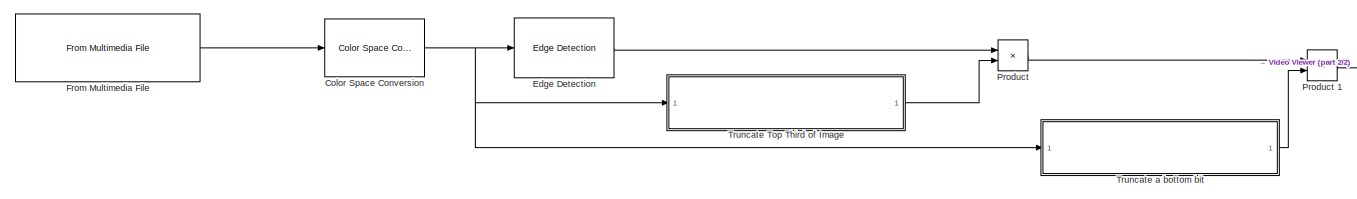
[diagram: root canvas - part 1/2, most of the canvas]
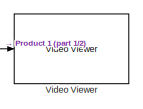
[diagram: root canvas - part 2/2, middle right region]
MODEL slx_daf7088e9cd9
KIND model
CONFIG AbsTol = auto
CONFIG FixedStep = auto
CONFIG MaxStep = auto
CONFIG MinStep = auto
CONFIG RelTol = 1e-3
CONFIG SampleTimeConstraint = Unconstrained
CONFIG Solver = ode45
CONFIG SolverMode = Auto
CONFIG SolverName = ode45
CONFIG StartTime = 0.0
CONFIG StopTime = 10.0
BLOCK [Reference] Color Space Conversion  REF=visionconversions/Color Space
 Conversion
  Ports = [1, 1]
  SourceBlock = visionconversions/Color Space\n Conversion
  SourceType = Color Space Conversion
  conversion = Obsolete
  conversionActive = R'G'B' to intensity
  imagePorts = One multidimensional signal
  rec = Rec. 601 (SDTV)
  sys = 1125/60/2:1
  wp_str = D65
BLOCK [Reference] Edge Detection  REF=visionanalysis/Edge Detection
  LockScale = off
  Ports = [1, 1]
  SourceBlock = visionanalysis/Edge Detection
  SourceType = Edge Detection
  accumFracLength = 8
  accumMode = Same as product output
  accumWordLength = 32
  autoPercent = 70
  edgeThinning = off
  method = Sobel
  outputFracLength = 4
  outputMode = Same as first input
  outputType = Binary image
  outputWordLength = 16
  overflowMode = off
  prodOutputFracLength = 8
  prodOutputMode = Binary point scaling
  prodOutputWordLength = 32
  roundingMode = Floor
  sigma = 1
  threshold = 20
  thresholdSource = Input port
  thresholdTuning = 4
  threshold_canny = [0.25 0.60]
  userDefinedThreshold = off
BLOCK [Reference] From Multimedia File  REF=dspvision/From Multimedia File
  Ports = [0, 1]
  SourceBlock = dspvision/From Multimedia File
  SourceType = From Multimedia File
  audioDataType = int16
  audioFrameSize = 1024
  colorVideoFormat = One multidimensional signal
  computeAudioFrameSize = off
  dataOrg = Column-major
  fourcc = RGB
  inheritSampleTime = on
  inputFilename = <userpath>\Desktop\Video.mp4
  isIntensityVideo = off
  loop = on
  noAudioOutput = off
  numPlays = inf
  outSamplingMode = Sample based
  outputEOF = off
  outputStreams = Video only
  userDefinedSampleTime = 1/30
  videoDataType = single
BLOCK [Product] Product 
  InputSameDT = off
  OutDataTypeStr = Inherit: Inherit via internal rule
  Ports = [2, 1]
  RndMeth = Floor
  SaturateOnIntegerOverflow = off
BLOCK [Product] Product 1
  InputSameDT = off
  OutDataTypeStr = Inherit: Inherit via internal rule
  Ports = [2, 1]
  RndMeth = Floor
  SaturateOnIntegerOverflow = off
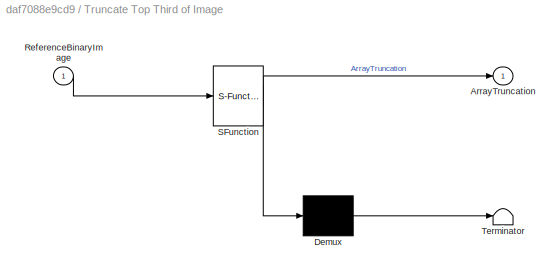
BLOCK [SubSystem] Truncate Top Third of Image
  ErrorFcn = Stateflow.Translate.translate
  PermitHierarchicalResolution = ExplicitOnly
  Ports = [1, 1]
  RequestExecContextInheritance = off
  SFBlockType = MATLAB Function
  TreatAsAtomicUnit = on
BLOCK [Demux] Truncate Top Third of Image/ Demux 
  Outputs = 1
  Ports = [1, 1]
BLOCK [S-Function] Truncate Top Third of Image/ SFunction 
  EnableBusSupport = on
  FunctionName = sf_sfun
  PortCounts = [1 2]
  Ports = [1, 2]
  Tag = Stateflow S-Function ArrayTruncation 2
BLOCK [Terminator] Truncate Top Third of Image/ Terminator 
BLOCK [Outport] Truncate Top Third of Image/ArrayTruncation
  IconDisplay = Port number
BLOCK [Inport] Truncate Top Third of Image/ReferenceBinaryImage
  IconDisplay = Port number
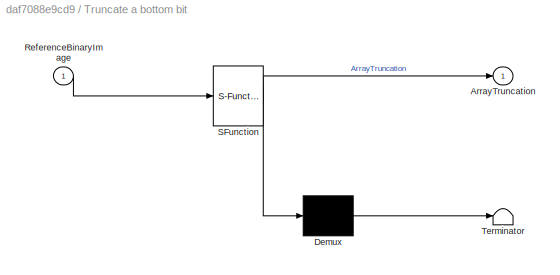
BLOCK [SubSystem] Truncate a bottom bit
  ErrorFcn = Stateflow.Translate.translate
  PermitHierarchicalResolution = ExplicitOnly
  Ports = [1, 1]
  RequestExecContextInheritance = off
  SFBlockType = MATLAB Function
  TreatAsAtomicUnit = on
BLOCK [Demux] Truncate a bottom bit/ Demux 
  Outputs = 1
  Ports = [1, 1]
BLOCK [S-Function] Truncate a bottom bit/ SFunction 
  EnableBusSupport = on
  FunctionName = sf_sfun
  PortCounts = [1 2]
  Ports = [1, 2]
  Tag = Stateflow S-Function ArrayTruncation 1
BLOCK [Terminator] Truncate a bottom bit/ Terminator 
BLOCK [Outport] Truncate a bottom bit/ArrayTruncation
  IconDisplay = Port number
BLOCK [Inport] Truncate a bottom bit/ReferenceBinaryImage
  IconDisplay = Port number
BLOCK [Reference] Video Viewer  REF=visionsinks/Video Viewer
  AxisZoom = on
  DefaultConfigurationName = vipscopes.VideoViewerScopeCfg
  FigPos = [1921 1038 1920 939]
  OpenAtMdlStart = on
  Ports = [1]
  SourceBlock = visionsinks/Video Viewer
  SourceType = Video Viewer
  UserDataPersistent = on
  colormapValue = gray(256)
  imagePorts = One multidimensional signal
  inputType = Obsolete7b
  maxInputVal = 255
  minInputVal = 0
  specRange = off
  trueSizedOnce = off
  useColorMap = off
NET Color Space Conversion:1 -> Edge Detection:1, Truncate Top Third of Image:1, Truncate a bottom bit:1
LINE Edge Detection:1 -> Product :1
LINE From Multimedia File:1 -> Color Space Conversion:1
LINE Product 1:1 -> Video Viewer:1
LINE Product :1 -> Product 1:1
LINE Truncate Top Third of Image:1 -> Product :2
LINE Truncate a bottom bit:1 -> Product 1:2
note: NET lines group one-source signal fan-out (src -> all destinations, sorted); 1:1 wires keep LINE
CHART Truncate a bottom bit states=1 transitions=1
  STATE_LABEL 'eML_blk_kernel()'
  STATE_LABEL 'SCRIPT:\nfunction ArrayTruncation = fcn(ReferenceBinaryImage)\n\n%This function truncates the image you are processing by O variable fraction.\n% In this case, O was set to 3 and deletes the first third of the flattened\n% 2D array.\n\nO = 9/10;\n\n[x,y] = size(ReferenceBinaryImage);\nmatrix = ones(x, y);\n\nfor i = x*O:x\n    for j = 1:y\n        matrix(i,j) = 0;\n    end\nend\n\nArrayTruncation = matrix;\n\nend'
CHART Truncate Top Third of Image states=1 transitions=1
  STATE_LABEL 'eML_blk_kernel()'
  STATE_LABEL 'SCRIPT:\nfunction ArrayTruncation = fcn(ReferenceBinaryImage)\n\n%This function truncates the image you are processing by O variable fraction.\n% In this case, O was set to 3 and deletes the first third of the flattened\n% 2D array.\n\nO = 3;\n\n[x,y] = size(ReferenceBinaryImage);\nmatrix = zeros(x, y);\n\nfor i = x/O:x\n    for j = 1:y\n        matrix(i,j) = 1;\n    end\nend\n\nArrayTruncation = matrix;\n\nend'
